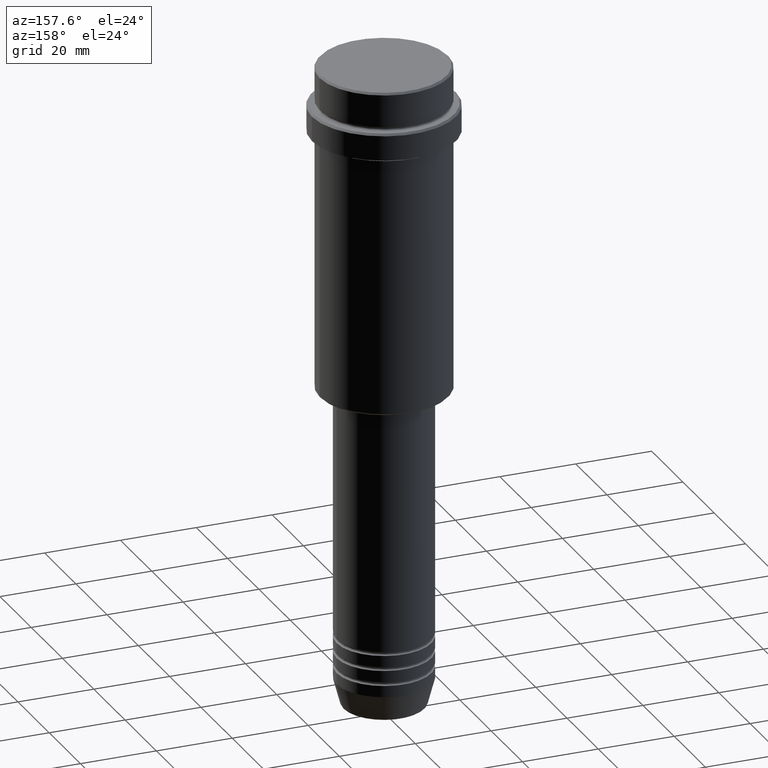
[diagram: clean part render]
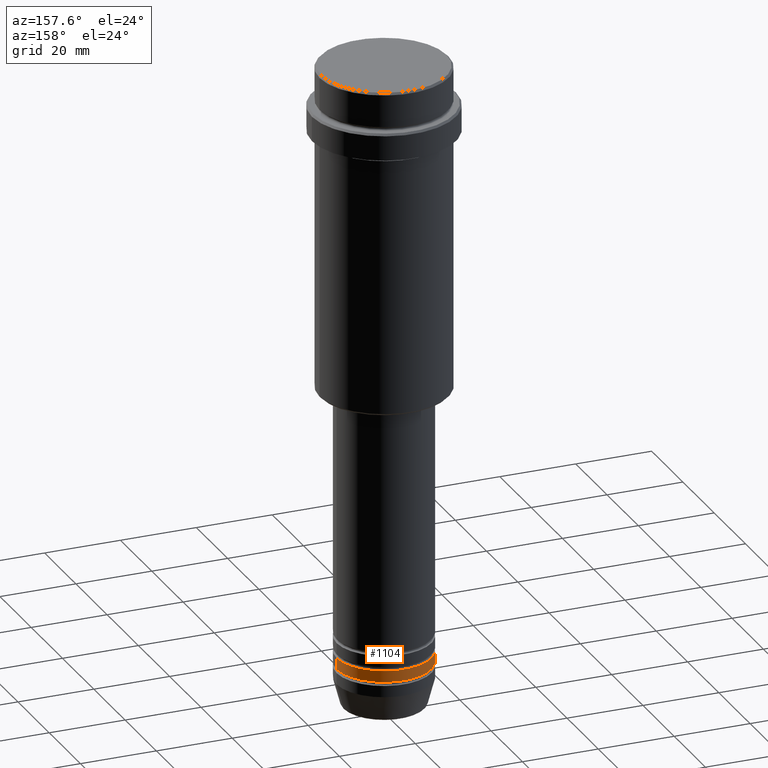
[diagram: same view with one face highlighted and labeled with its STEP entity id]
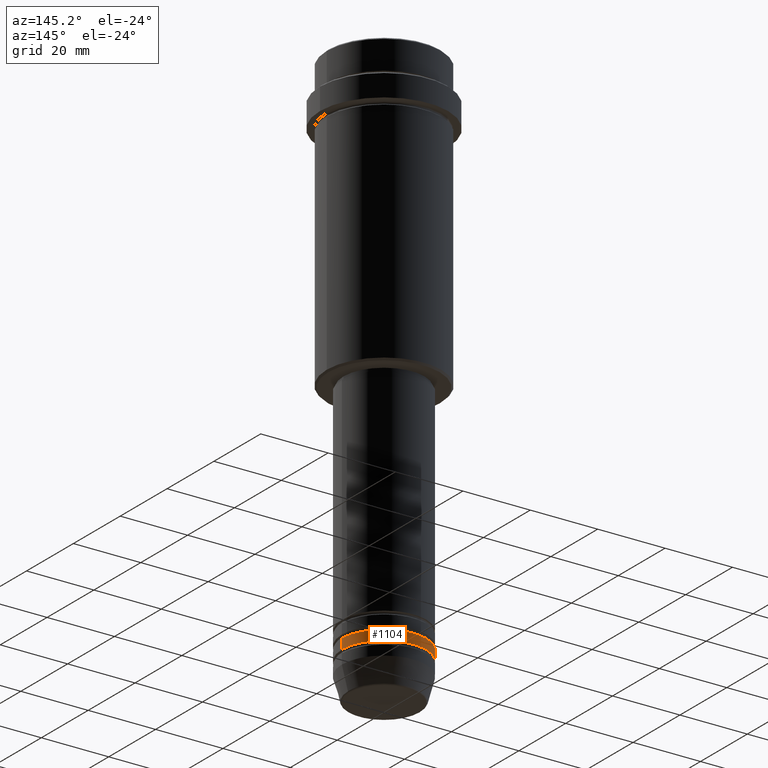
[diagram: same view with one face highlighted and labeled with its STEP entity id]
A machine part, auxiliary view. The second image highlights one B-rep face of the part: STEP entity #1104.
A second angle (auxiliary view) of the same face is appended — the face is thin or edge-on in the first view.
In plain terms, the highlighted cylindrical surface (partial cylindrical patch) has radius 12.5 mm, axis along (-0, -0, 1).
Its self-contained STEP definition (entity closure, byte-faithful):
#27 = ORIENTED_EDGE ( 'NONE', *, *, #1411, .F. ) ;
#39 = VECTOR ( 'NONE', #272, 1000.000000000000000 ) ;
#46 = CARTESIAN_POINT ( 'NONE',  ( -12.50000000000000000, 1.530808498934191521E-15, -158.9999999999998863 ) ) ;
#139 = CIRCLE ( 'NONE', #200, 12.50000000000000000 ) ;
#178 = EDGE_CURVE ( 'NONE', #445, #805, #795, .T. ) ;
#200 = AXIS2_PLACEMENT_3D ( 'NONE', #467, #1331, #916 ) ;
#239 = EDGE_CURVE ( 'NONE', #353, #445, #361, .T. ) ;
#259 = DIRECTION ( 'NONE',  ( 1.000000000000000000, 0.000000000000000000, 0.000000000000000000 ) ) ;
#270 = CARTESIAN_POINT ( 'NONE',  ( -12.50000000000000000, 1.530808498934191521E-15, -155.9999999999998863 ) ) ;
#272 = DIRECTION ( 'NONE',  ( -0.000000000000000000, -0.000000000000000000, 1.000000000000000000 ) ) ;
#317 = EDGE_CURVE ( 'NONE', #914, #805, #139, .T. ) ;
#353 = VERTEX_POINT ( 'NONE', #905 ) ;
#361 = CIRCLE ( 'NONE', #959, 12.50000000000000000 ) ;
#375 = CARTESIAN_POINT ( 'NONE',  ( -12.50000000000000000, 1.530808498934191521E-15, 0.000000000000000000 ) ) ;
#445 = VERTEX_POINT ( 'NONE', #46 ) ;
#463 = CYLINDRICAL_SURFACE ( 'NONE', #536, 12.50000000000000000 ) ;
#467 = CARTESIAN_POINT ( 'NONE',  ( 0.000000000000000000, 0.000000000000000000, -155.9999999999998863 ) ) ;
#481 = DIRECTION ( 'NONE',  ( 1.000000000000000000, 0.000000000000000000, 0.000000000000000000 ) ) ;
#509 = CARTESIAN_POINT ( 'NONE',  ( 12.50000000000000000, 0.000000000000000000, -155.9999999999998863 ) ) ;
#536 = AXIS2_PLACEMENT_3D ( 'NONE', #907, #557, #259 ) ;
#557 = DIRECTION ( 'NONE',  ( -0.000000000000000000, -0.000000000000000000, 1.000000000000000000 ) ) ;
#641 = ORIENTED_EDGE ( 'NONE', *, *, #239, .T. ) ;
#696 = CARTESIAN_POINT ( 'NONE',  ( 0.000000000000000000, 0.000000000000000000, -158.9999999999998863 ) ) ;
#778 = DIRECTION ( 'NONE',  ( -0.000000000000000000, -0.000000000000000000, 1.000000000000000000 ) ) ;
#795 = LINE ( 'NONE', #375, #937 ) ;
#805 = VERTEX_POINT ( 'NONE', #270 ) ;
#905 = CARTESIAN_POINT ( 'NONE',  ( 12.50000000000000000, 0.000000000000000000, -158.9999999999998863 ) ) ;
#907 = CARTESIAN_POINT ( 'NONE',  ( 0.000000000000000000, 0.000000000000000000, 0.000000000000000000 ) ) ;
#909 = EDGE_LOOP ( 'NONE', ( #641, #1209, #1211, #27 ) ) ;
#914 = VERTEX_POINT ( 'NONE', #509 ) ;
#916 = DIRECTION ( 'NONE',  ( 1.000000000000000000, 0.000000000000000000, 0.000000000000000000 ) ) ;
#937 = VECTOR ( 'NONE', #778, 1000.000000000000000 ) ;
#959 = AXIS2_PLACEMENT_3D ( 'NONE', #696, #1023, #481 ) ;
#1023 = DIRECTION ( 'NONE',  ( -0.000000000000000000, -0.000000000000000000, 1.000000000000000000 ) ) ;
#1104 = ADVANCED_FACE ( 'NONE', ( #1124 ), #463, .T. ) ;
#1124 = FACE_OUTER_BOUND ( 'NONE', #909, .T. ) ;
#1209 = ORIENTED_EDGE ( 'NONE', *, *, #178, .T. ) ;
#1211 = ORIENTED_EDGE ( 'NONE', *, *, #317, .F. ) ;
#1331 = DIRECTION ( 'NONE',  ( -0.000000000000000000, -0.000000000000000000, 1.000000000000000000 ) ) ;
#1359 = CARTESIAN_POINT ( 'NONE',  ( 12.50000000000000000, 0.000000000000000000, 0.000000000000000000 ) ) ;
#1377 = LINE ( 'NONE', #1359, #39 ) ;
#1411 = EDGE_CURVE ( 'NONE', #353, #914, #1377, .T. ) ;